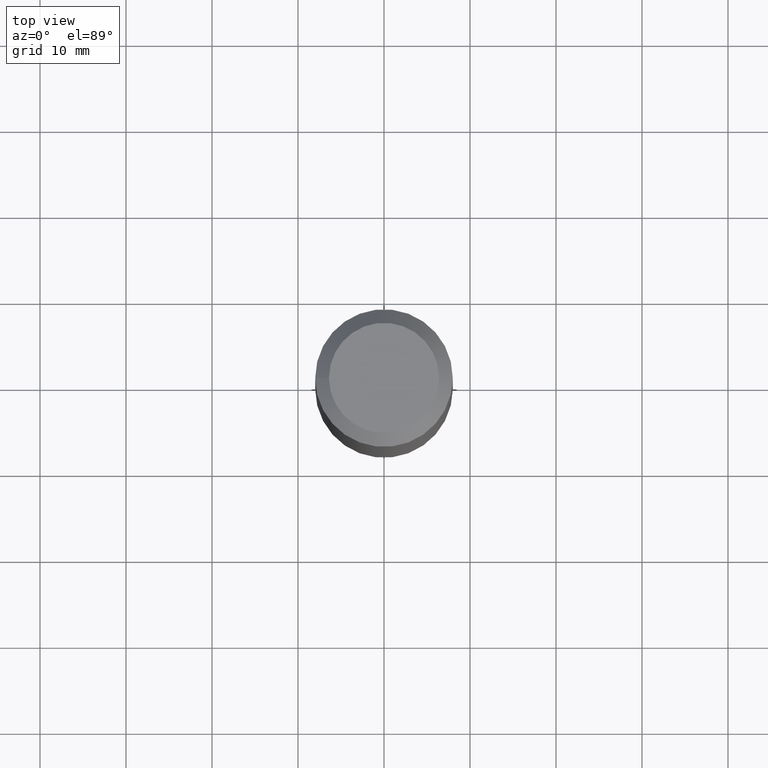
[diagram: clean part render]
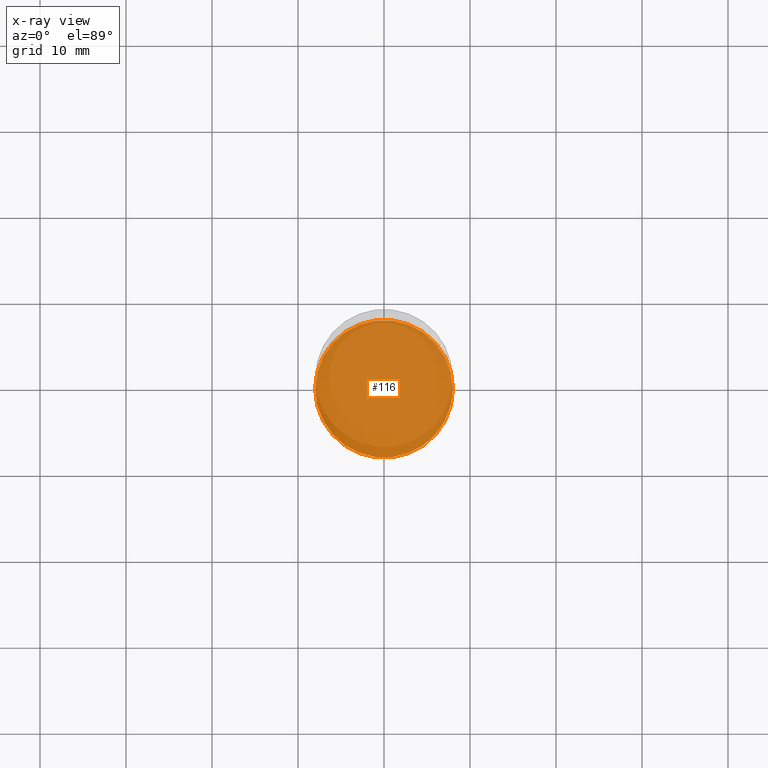
[diagram: x-ray — body ghosted, one internal face saturated and labeled with its STEP entity id]
A machine part, top view, then the same camera in x-ray: the body is ghosted and one INTERNAL B-rep face — a face not visible from any outside direction — is saturated and labeled: STEP entity #116.
In plain terms, the highlighted planar face has unit normal (-0, 0, -1).
Its self-contained STEP definition (entity closure, byte-faithful):
#3 = VERTEX_POINT ( 'NONE', #63 ) ;
#11 = CIRCLE ( 'NONE', #98, 7.999999999999996447 ) ;
#26 = ORIENTED_EDGE ( 'NONE', *, *, #142, .T. ) ;
#30 = DIRECTION ( 'NONE',  ( 1.000000000000000000, 0.0000000000000000000, -6.938893903907231533E-15 ) ) ;
#60 = CARTESIAN_POINT ( 'NONE',  ( -5.167392381487835851E-13, 0.0000000000000000000, -73.99999999999998579 ) ) ;
#63 = CARTESIAN_POINT ( 'NONE',  ( 7.999999999999479527, 0.0000000000000000000, -74.00000000000009948 ) ) ;
#79 = FACE_OUTER_BOUND ( 'NONE', #143, .T. ) ;
#98 = AXIS2_PLACEMENT_3D ( 'NONE', #144, #159, #30 ) ;
#101 = AXIS2_PLACEMENT_3D ( 'NONE', #60, #136, #175 ) ;
#116 = ADVANCED_FACE ( 'NONE', ( #79 ), #158, .T. ) ;
#136 = DIRECTION ( 'NONE',  ( -6.982962677686266711E-15, 0.0000000000000000000, -1.000000000000000000 ) ) ;
#142 = EDGE_CURVE ( 'NONE', #3, #3, #11, .T. ) ;
#143 = EDGE_LOOP ( 'NONE', ( #26 ) ) ;
#144 = CARTESIAN_POINT ( 'NONE',  ( -5.167392381487839890E-13, 0.0000000000000000000, -74.00000000000004263 ) ) ;
#158 = PLANE ( 'NONE',  #101 ) ;
#159 = DIRECTION ( 'NONE',  ( -6.982962677686266711E-15, -0.0000000000000000000, -1.000000000000000000 ) ) ;
#175 = DIRECTION ( 'NONE',  ( -1.000000000000000000, 0.0000000000000000000, 6.982962677686266711E-15 ) ) ;